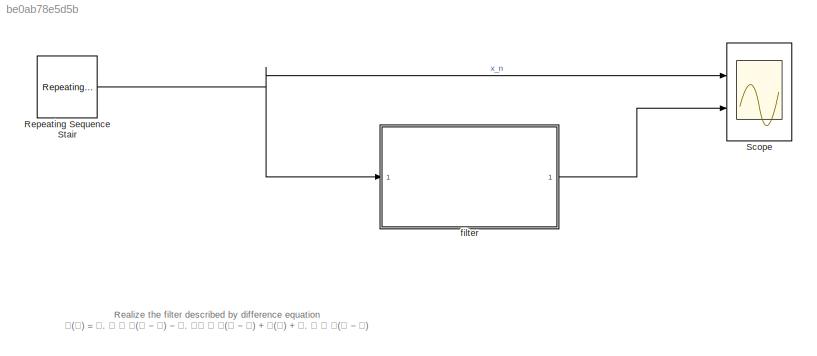
MODEL slx_be0ab78e5d5b
KIND model
CONFIG AbsTol = auto
CONFIG EnableMultiTasking = off
CONFIG FixedStep = auto
CONFIG MaxStep = auto
CONFIG MinStep = auto
CONFIG RelTol = 1e-3
CONFIG SampleTimeConstraint = Unconstrained
CONFIG Solver = VariableStepAuto
CONFIG SolverName = VariableStepAuto
CONFIG StartTime = 0.0
CONFIG StopTime = 10.0
BLOCK [Reference] Repeating Sequence Stair  REF=simulink/Sources/Repeating
Sequence
Stair
  Ports = [0, 1]
  SourceBlock = simulink/Sources/Repeating\nSequence\nStair
  SourceProductBaseCode = SL
  SourceType = Repeating Sequence Stair
BLOCK [Scope] Scope
  Floating = off
  NumInputPorts = 2
  Ports = [2]
  ScopeSpecificationString = Simulink.scopes.TimeScopeBlockCfg('CurrentConfiguration', extmgr.ConfigurationSet(extmgr.Configuration('Core','General UI',true),extmgr.Configuration('Core','Source UI',true),extmgr.Configuration('Sources','WiredSimulink',true),extmgr.Configuration('Visuals','Time Domain',true,'SerializedDisplays',{struct('MinYLimReal','-0.125','MaxYLimReal','1.125','YLabelReal','','MinYLimMag','0.00000','MaxYLimM...<+1988ch>
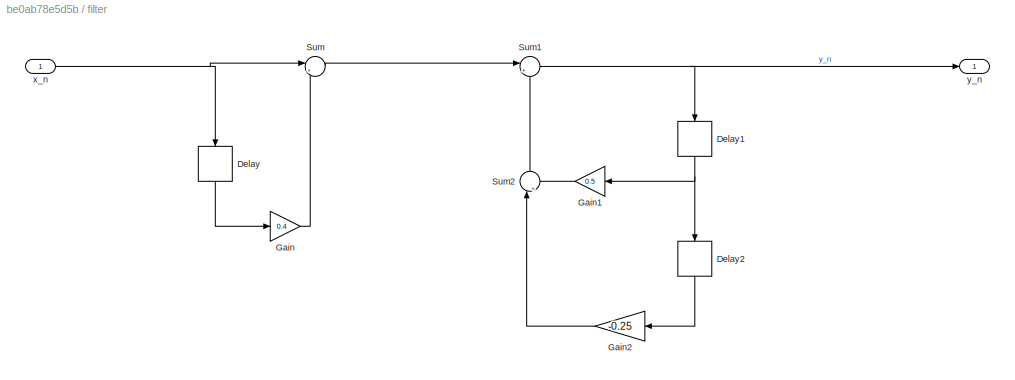
BLOCK [SubSystem] filter
  Ports = [1, 1]
  RequestExecContextInheritance = off
BLOCK [Delay] filter/Delay
  DelayLength = 1
  InitialCondition = 0
  InputPortMap = u0
  NameLocation = left
  Ports = [1, 1]
BLOCK [Delay] filter/Delay1
  DelayLength = 1
  InitialCondition = 0
  InputPortMap = u0
  NameLocation = left
  Ports = [1, 1]
BLOCK [Delay] filter/Delay2
  DelayLength = 1
  InitialCondition = 0
  InputPortMap = u0
  NameLocation = left
  Ports = [1, 1]
BLOCK [Gain] filter/Gain
  Gain = 0.4
BLOCK [Gain] filter/Gain1
  Gain = 0.5
  NameLocation = top
BLOCK [Gain] filter/Gain2
  Gain = -0.25
  NameLocation = top
BLOCK [Sum] filter/Sum
  Inputs = |++
  Ports = [2, 1]
BLOCK [Sum] filter/Sum1
  Inputs = |++
  Ports = [2, 1]
BLOCK [Sum] filter/Sum2
  Inputs = |++
  NameLocation = right
  Ports = [2, 1]
BLOCK [Inport] filter/x_n
BLOCK [Outport] filter/y_n
ANNOTATION (root): Realize the filter described by difference equation 𝐲(𝐧) = 𝟎. 𝟓 ∗ 𝐲(𝐧 − 𝟏) − 𝟎. 𝟐𝟓 ∗ 𝐲(𝐧 − 𝟐) + 𝐱(𝐧) + 𝟎. 𝟒 ∗ 𝐱(𝐧 − 𝟏)
NET Repeating Sequence Stair:1 -> Scope:1, filter:1
NET filter/Delay1:1 -> filter/Delay2:1, filter/Gain1:1
LINE filter/Delay2:1 -> filter/Gain2:1
LINE filter/Delay:1 -> filter/Gain:1
LINE filter/Gain1:1 -> filter/Sum2:2
LINE filter/Gain2:1 -> filter/Sum2:1
LINE filter/Gain:1 -> filter/Sum:2
NET filter/Sum1:1 -> filter/Delay1:1, filter/y_n:1
LINE filter/Sum2:1 -> filter/Sum1:2
LINE filter/Sum:1 -> filter/Sum1:1
NET filter/x_n:1 -> filter/Delay:1, filter/Sum:1
LINE filter:1 -> Scope:2
note: NET lines group one-source signal fan-out (src -> all destinations, sorted); 1:1 wires keep LINE
